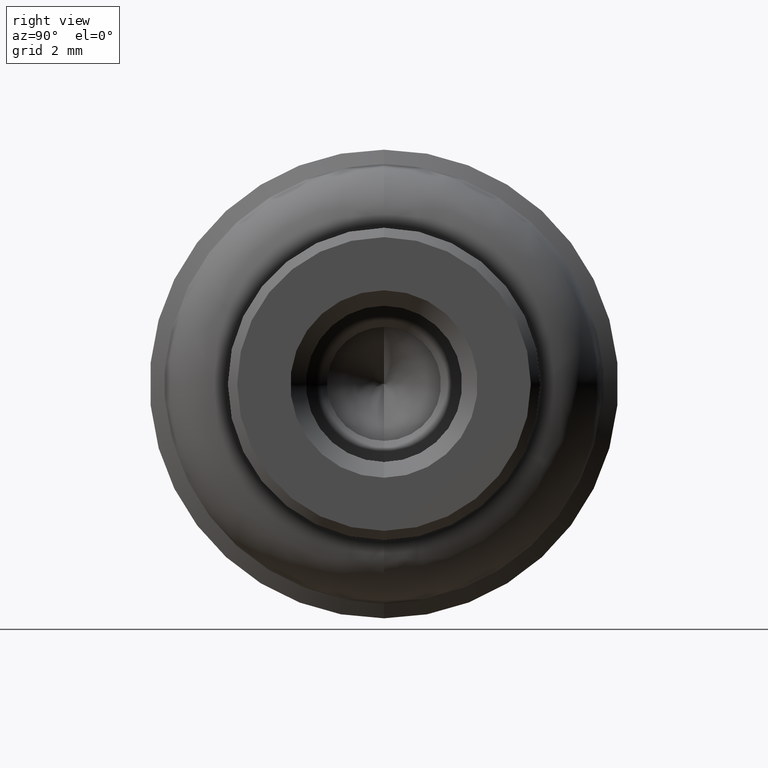
[diagram: clean part render]
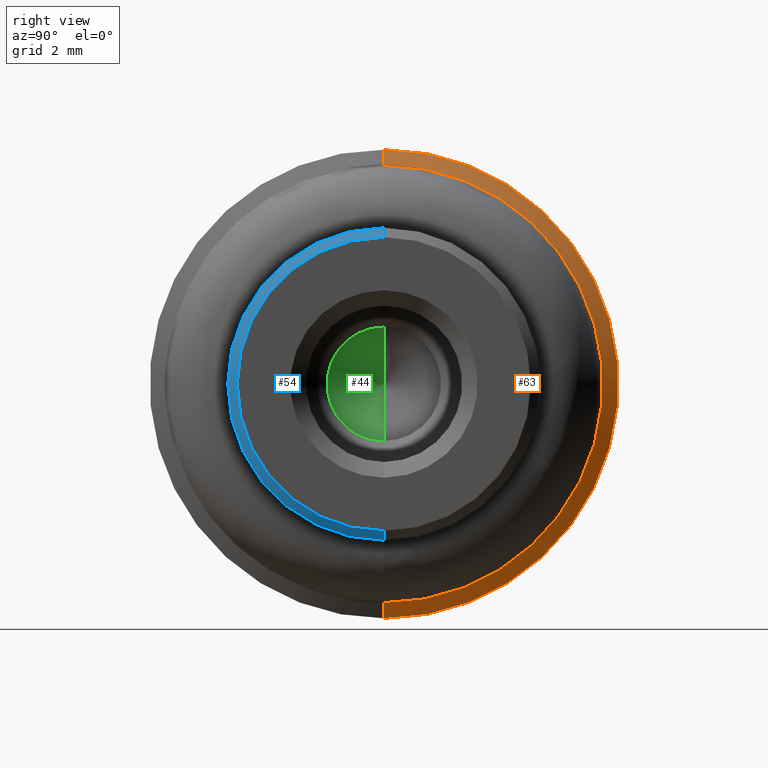
[diagram: same view with three faces highlighted in distinct colors, each labeled with its STEP entity id]
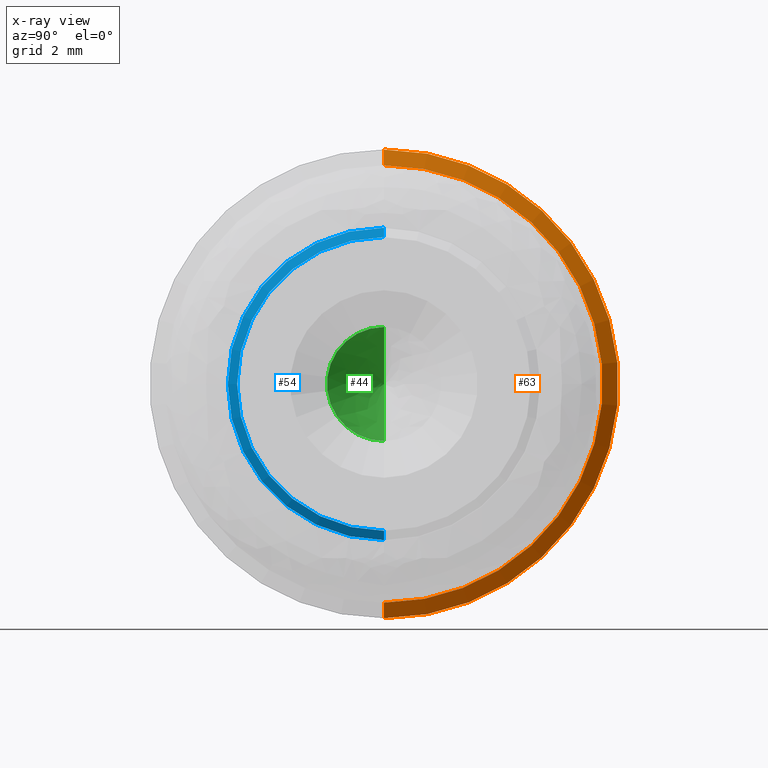
[diagram: x-ray of the same camera — body ghosted, the three highlighted faces saturated]
A machine part, right view with three faces highlighted in distinct colors.
The next image is the same camera in x-ray (body ghosted, the three faces saturated) — at least one of them is partly hidden behind the body in this view.
Their STEP definitions:

[orange] entity #63 — the highlighted face is a freeform B-spline surface patch.
#63=ADVANCED_FACE('',(#304),#303,.T.);
#303=( BOUNDED_SURFACE() B_SPLINE_SURFACE( 2,1,((#587,#588),(#589,#590),(#591,#592),(#593,#594),(#595,#596)), .UNSPECIFIED.,.F.,.F.,.F.) B_SPLINE_SURFACE_WITH_KNOTS((3,2,3),(2,2),(0.00000000000E+00,5.00000000000E-01,1.00000000000E+00),(0.00000000000E+00,1.00000000000E+00), .UNSPECIFIED. ) GEOMETRIC_REPRESENTATION_ITEM() RATIONAL_B_SPLINE_SURFACE(((1.00000000000E+00,1.00000000000E+00),(7.07106781187E-01,7.07106781187E-01),(1.00000000000E+00,1.00000000000E+00),(7.07106781187E-01,7.07106781187E-01),(1.00000000000E+00,1.00000000000E+00))) REPRESENTATION_ITEM('') SURFACE() );
#304=FACE_OUTER_BOUND('',#597,.T.);
#587=CARTESIAN_POINT('',(1.11732845198E-12,0.00000000000E+00,0.00000000000E+00));
#588=CARTESIAN_POINT('',(-6.36396103068E+00,1.29893408435E-15,1.06066017178E+01));
#589=CARTESIAN_POINT('',(1.11732845198E-12,0.00000000000E+00,0.00000000000E+00));
#590=CARTESIAN_POINT('',(-6.36396103068E+00,1.06066017178E+01,1.06066017178E+01));
#591=CARTESIAN_POINT('',(1.11732845198E-12,0.00000000000E+00,0.00000000000E+00));
#592=CARTESIAN_POINT('',(-6.36396103068E+00,1.06066017178E+01,-6.49467042177E-16));
#593=CARTESIAN_POINT('',(1.11732845198E-12,0.00000000000E+00,0.00000000000E+00));
#594=CARTESIAN_POINT('',(-6.36396103068E+00,1.06066017178E+01,-1.06066017178E+01));
#595=CARTESIAN_POINT('',(1.11732845198E-12,0.00000000000E+00,0.00000000000E+00));
#596=CARTESIAN_POINT('',(-6.36396103068E+00,0.00000000000E+00,-1.06066017178E+01));
#597=EDGE_LOOP('',(#770,#771,#772,#773));
#770=ORIENTED_EDGE('',*,*,#841,.T.);
#771=ORIENTED_EDGE('',*,*,#843,.T.);
#772=ORIENTED_EDGE('',*,*,#845,.F.);
#773=ORIENTED_EDGE('',*,*,#844,.F.);
#841=EDGE_CURVE('',#1122,#1121,#1141,.T.);
#843=EDGE_CURVE('',#1121,#1147,#1155,.T.);
#844=EDGE_CURVE('',#1122,#1148,#1161,.T.);
#845=EDGE_CURVE('',#1148,#1147,#1167,.T.);
#1121=VERTEX_POINT('',#1390);
#1122=VERTEX_POINT('',#1391);
#1141=CIRCLE('',#1407,7.00007920255E+00);
#1147=VERTEX_POINT('',#1408);
#1148=VERTEX_POINT('',#1409);
#1155=(BOUNDED_CURVE() B_SPLINE_CURVE(1,(#1414,#1415),.UNSPECIFIED.,.F.,.F.) B_SPLINE_CURVE_WITH_KNOTS((2,2),(6.59973797202E-01,7.07106779179E-01),.UNSPECIFIED.) CURVE() GEOMETRIC_REPRESENTATION_ITEM() RATIONAL_B_SPLINE_CURVE((1.00000000000E+00,1.00000000000E+00)) REPRESENTATION_ITEM('') );
#1161=(BOUNDED_CURVE() B_SPLINE_CURVE(1,(#1416,#1417),.UNSPECIFIED.,.F.,.F.) B_SPLINE_CURVE_WITH_KNOTS((2,2),(6.59973789306E-01,7.07106773592E-01),.UNSPECIFIED.) CURVE() GEOMETRIC_REPRESENTATION_ITEM() RATIONAL_B_SPLINE_CURVE((7.50000000000E-01,7.50000000000E-01)) REPRESENTATION_ITEM('') );
#1167=CIRCLE('',#1421,7.50000000000E+00);
#1390=CARTESIAN_POINT('',(-4.20004752153E+00,0.00000000000E+00,-7.00007920255E+00));
#1391=CARTESIAN_POINT('',(-4.20004752153E+00,0.00000000000E+00,7.00007920255E+00));
#1404=CARTESIAN_POINT('',(-4.20004752153E+00,0.00000000000E+00,0.00000000000E+00));
#1405=DIRECTION('',(-1.00000000000E+00,0.00000000000E+00,0.00000000000E+00));
#1406=DIRECTION('',(0.00000000000E+00,-1.22460635382E-16,1.00000000000E+00));
#1407=AXIS2_PLACEMENT_3D('',#1404,#1405,#1406);
#1408=CARTESIAN_POINT('',(-4.50000000000E+00,5.92118946467E-16,-7.50000000000E+00));
#1409=CARTESIAN_POINT('',(-4.50000000000E+00,0.00000000000E+00,7.50000000000E+00));
#1414=CARTESIAN_POINT('',(-4.20004752666E+00,-1.71452491993E-15,-7.00007921110E+00));
#1415=CARTESIAN_POINT('',(-4.49999998723E+00,-1.83697019351E-15,-7.49999997871E+00));
#1416=CARTESIAN_POINT('',(-4.20004747641E+00,1.95391492410E-15,7.00007912736E+00));
#1417=CARTESIAN_POINT('',(-4.49999995167E+00,2.09345658909E-15,7.49999991944E+00));
#1418=CARTESIAN_POINT('',(-4.50000000000E+00,0.00000000000E+00,0.00000000000E+00));
#1419=DIRECTION('',(-1.00000000000E+00,0.00000000000E+00,0.00000000000E+00));
#1420=DIRECTION('',(0.00000000000E+00,-1.22460635382E-16,1.00000000000E+00));
#1421=AXIS2_PLACEMENT_3D('',#1418,#1419,#1420);

[blue] entity #54 — the highlighted face is a freeform B-spline surface patch.
#54=ADVANCED_FACE('',(#214),#213,.T.);
#213=( BOUNDED_SURFACE() B_SPLINE_SURFACE( 2,1,((#482,#483),(#484,#485),(#486,#487),(#488,#489),(#490,#491)), .UNSPECIFIED.,.F.,.F.,.F.) B_SPLINE_SURFACE_WITH_KNOTS((3,2,3),(2,2),(0.00000000000E+00,5.00000000000E-01,1.00000000000E+00),(0.00000000000E+00,1.00000000000E+00), .UNSPECIFIED. ) GEOMETRIC_REPRESENTATION_ITEM() RATIONAL_B_SPLINE_SURFACE(((1.00000000000E+00,1.00000000000E+00),(7.07106781187E-01,7.07106781187E-01),(1.00000000000E+00,1.00000000000E+00),(7.07106781187E-01,7.07106781187E-01),(1.00000000000E+00,1.00000000000E+00))) REPRESENTATION_ITEM('') SURFACE() );
#214=FACE_OUTER_BOUND('',#492,.T.);
#482=CARTESIAN_POINT('',(0.00000000000E+00,-1.15116799120E-15,-4.70000000000E+00));
#483=CARTESIAN_POINT('',(-3.00000000000E-01,-1.22464679915E-15,-5.00000000000E+00));
#484=CARTESIAN_POINT('',(0.00000000000E+00,-4.70000000000E+00,-4.70000000000E+00));
#485=CARTESIAN_POINT('',(-3.00000000000E-01,-5.00000000000E+00,-5.00000000000E+00));
#486=CARTESIAN_POINT('',(0.00000000000E+00,-4.70000000000E+00,8.63375993399E-16));
#487=CARTESIAN_POINT('',(-3.00000000000E-01,-5.00000000000E+00,9.18485099361E-16));
#488=CARTESIAN_POINT('',(0.00000000000E+00,-4.70000000000E+00,4.70000000000E+00));
#489=CARTESIAN_POINT('',(-3.00000000000E-01,-5.00000000000E+00,5.00000000000E+00));
#490=CARTESIAN_POINT('',(0.00000000000E+00,5.75583995599E-16,4.70000000000E+00));
#491=CARTESIAN_POINT('',(-3.00000000000E-01,6.12323399574E-16,5.00000000000E+00));
#492=EDGE_LOOP('',(#734,#735,#736,#737));
#734=ORIENTED_EDGE('',*,*,#830,.F.);
#735=ORIENTED_EDGE('',*,*,#831,.F.);
#736=ORIENTED_EDGE('',*,*,#798,.T.);
#737=ORIENTED_EDGE('',*,*,#832,.T.);
#798=EDGE_CURVE('',#856,#857,#858,.T.);
#830=EDGE_CURVE('',#1071,#1072,#1073,.T.);
#831=EDGE_CURVE('',#856,#1071,#1079,.T.);
#832=EDGE_CURVE('',#857,#1072,#1085,.T.);
#856=VERTEX_POINT('',#1237);
#857=VERTEX_POINT('',#1238);
#858=CIRCLE('',#1242,4.70000000000E+00);
#1071=VERTEX_POINT('',#1368);
#1072=VERTEX_POINT('',#1369);
#1073=CIRCLE('',#1373,5.00000000000E+00);
#1079=(BOUNDED_CURVE() B_SPLINE_CURVE(1,(#1374,#1375),.UNSPECIFIED.,.F.,.F.) B_SPLINE_CURVE_WITH_KNOTS((2,2),(0.00000000000E+00,1.00000000000E+00),.UNSPECIFIED.) CURVE() GEOMETRIC_REPRESENTATION_ITEM() RATIONAL_B_SPLINE_CURVE((1.00000000000E+00,1.00000000000E+00)) REPRESENTATION_ITEM('') );
#1085=(BOUNDED_CURVE() B_SPLINE_CURVE(1,(#1376,#1377),.UNSPECIFIED.,.F.,.F.) B_SPLINE_CURVE_WITH_KNOTS((2,2),(0.00000000000E+00,1.00000000000E+00),.UNSPECIFIED.) CURVE() GEOMETRIC_REPRESENTATION_ITEM() RATIONAL_B_SPLINE_CURVE((7.50000000000E-01,7.50000000000E-01)) REPRESENTATION_ITEM('') );
#1237=CARTESIAN_POINT('',(0.00000000000E+00,2.96059473233E-16,-4.70000000000E+00));
#1238=CARTESIAN_POINT('',(0.00000000000E+00,0.00000000000E+00,4.70000000000E+00));
#1239=CARTESIAN_POINT('',(0.00000000000E+00,0.00000000000E+00,0.00000000000E+00));
#1240=DIRECTION('',(-1.00000000000E+00,0.00000000000E+00,0.00000000000E+00));
#1241=DIRECTION('',(0.00000000000E+00,-1.22460635382E-16,1.00000000000E+00));
#1242=AXIS2_PLACEMENT_3D('',#1239,#1240,#1241);
#1368=CARTESIAN_POINT('',(-3.00000000000E-01,2.96059473233E-16,-5.00000000000E+00));
#1369=CARTESIAN_POINT('',(-3.00000000000E-01,0.00000000000E+00,5.00000000000E+00));
#1370=CARTESIAN_POINT('',(-3.00000000000E-01,0.00000000000E+00,0.00000000000E+00));
#1371=DIRECTION('',(-1.00000000000E+00,0.00000000000E+00,0.00000000000E+00));
#1372=DIRECTION('',(0.00000000000E+00,-1.22460635382E-16,1.00000000000E+00));
#1373=AXIS2_PLACEMENT_3D('',#1370,#1371,#1372);
#1374=CARTESIAN_POINT('',(0.00000000000E+00,-1.15112997259E-15,-4.70000000000E+00));
#1375=CARTESIAN_POINT('',(-3.00000000000E-01,-1.22460635382E-15,-5.00000000000E+00));
#1376=CARTESIAN_POINT('',(0.00000000000E+00,1.48029736617E-15,4.70000000000E+00));
#1377=CARTESIAN_POINT('',(-3.00000000000E-01,1.48029736617E-15,5.00000000000E+00));

[green] entity #44 — the highlighted face is a freeform B-spline surface patch.
#44=ADVANCED_FACE('',(#114),#113,.F.);
#113=( BOUNDED_SURFACE() B_SPLINE_SURFACE( 2,1,((#396,#397),(#398,#399),(#400,#401),(#402,#403),(#404,#405)), .UNSPECIFIED.,.F.,.F.,.F.) B_SPLINE_SURFACE_WITH_KNOTS((3,2,3),(2,2),(0.00000000000E+00,5.00000000000E-01,1.00000000000E+00),(0.00000000000E+00,1.00000000000E+00), .UNSPECIFIED. ) GEOMETRIC_REPRESENTATION_ITEM() RATIONAL_B_SPLINE_SURFACE(((1.00000000000E+00,1.00000000000E+00),(7.07106781187E-01,7.07106781187E-01),(1.00000000000E+00,1.00000000000E+00),(7.07106781187E-01,7.07106781187E-01),(1.00000000000E+00,1.00000000000E+00))) REPRESENTATION_ITEM('') SURFACE() );
#114=FACE_OUTER_BOUND('',#406,.T.);
#396=CARTESIAN_POINT('',(-8.20993461534E+00,0.00000000000E+00,0.00000000000E+00));
#397=CARTESIAN_POINT('',(-6.71982835514E+00,-6.32147921052E-16,2.58093975133E+00));
#398=CARTESIAN_POINT('',(-8.20993461534E+00,0.00000000000E+00,0.00000000000E+00));
#399=CARTESIAN_POINT('',(-6.71982835514E+00,-2.58093975133E+00,2.58093975133E+00));
#400=CARTESIAN_POINT('',(-8.20993461534E+00,0.00000000000E+00,0.00000000000E+00));
#401=CARTESIAN_POINT('',(-6.71982835514E+00,-2.58093975133E+00,-4.74110940789E-16));
#402=CARTESIAN_POINT('',(-8.20993461534E+00,0.00000000000E+00,0.00000000000E+00));
#403=CARTESIAN_POINT('',(-6.71982835514E+00,-2.58093975133E+00,-2.58093975133E+00));
#404=CARTESIAN_POINT('',(-8.20993461534E+00,0.00000000000E+00,0.00000000000E+00));
#405=CARTESIAN_POINT('',(-6.71982835514E+00,3.16073960526E-16,-2.58093975133E+00));
#406=EDGE_LOOP('',(#696,#697,#698));
#696=ORIENTED_EDGE('',*,*,#812,.T.);
#697=ORIENTED_EDGE('',*,*,#813,.F.);
#698=ORIENTED_EDGE('',*,*,#814,.F.);
#812=EDGE_CURVE('',#954,#955,#956,.T.);
#813=EDGE_CURVE('',#962,#955,#963,.T.);
#814=EDGE_CURVE('',#954,#962,#969,.T.);
#954=VERTEX_POINT('',#1307);
#955=VERTEX_POINT('',#1308);
#956=(BOUNDED_CURVE() B_SPLINE_CURVE(1,(#1309,#1310),.UNSPECIFIED.,.F.,.F.) B_SPLINE_CURVE_WITH_KNOTS((2,2),(0.00000000000E+00,7.07106779020E-01),.UNSPECIFIED.) CURVE() GEOMETRIC_REPRESENTATION_ITEM() RATIONAL_B_SPLINE_CURVE((1.00000000000E+00,1.00000000000E+00)) REPRESENTATION_ITEM('') );
#962=VERTEX_POINT('',#1311);
#963=CIRCLE('',#1315,1.82500000000E+00);
#969=(BOUNDED_CURVE() B_SPLINE_CURVE(1,(#1316,#1317),.UNSPECIFIED.,.F.,.F.) B_SPLINE_CURVE_WITH_KNOTS((2,2),(0.00000000000E+00,7.07106781187E-01),.UNSPECIFIED.) CURVE() GEOMETRIC_REPRESENTATION_ITEM() RATIONAL_B_SPLINE_CURVE((7.50000000000E-01,7.50000000000E-01)) REPRESENTATION_ITEM('') );
#1307=CARTESIAN_POINT('',(-8.20993461534E+00,0.00000000000E+00,0.00000000000E+00));
#1308=CARTESIAN_POINT('',(-7.15627037406E+00,0.00000000000E+00,1.82500000000E+00));
#1309=CARTESIAN_POINT('',(-8.20993461534E+00,0.00000000000E+00,0.00000000000E+00));
#1310=CARTESIAN_POINT('',(-7.15627037729E+00,-4.46981317776E-16,1.82499999441E+00));
#1311=CARTESIAN_POINT('',(-7.15627037406E+00,2.22044604925E-16,-1.82500000000E+00));
#1312=CARTESIAN_POINT('',(-7.15627037406E+00,0.00000000000E+00,0.00000000000E+00));
#1313=DIRECTION('',(-1.00000000000E+00,0.00000000000E+00,0.00000000000E+00));
#1314=DIRECTION('',(0.00000000000E+00,-1.22460635382E-16,1.00000000000E+00));
#1315=AXIS2_PLACEMENT_3D('',#1312,#1313,#1314);
#1316=CARTESIAN_POINT('',(-8.20993461534E+00,0.00000000000E+00,0.00000000000E+00));
#1317=CARTESIAN_POINT('',(-7.15627037406E+00,5.23364152895E-16,-1.82500000000E+00));